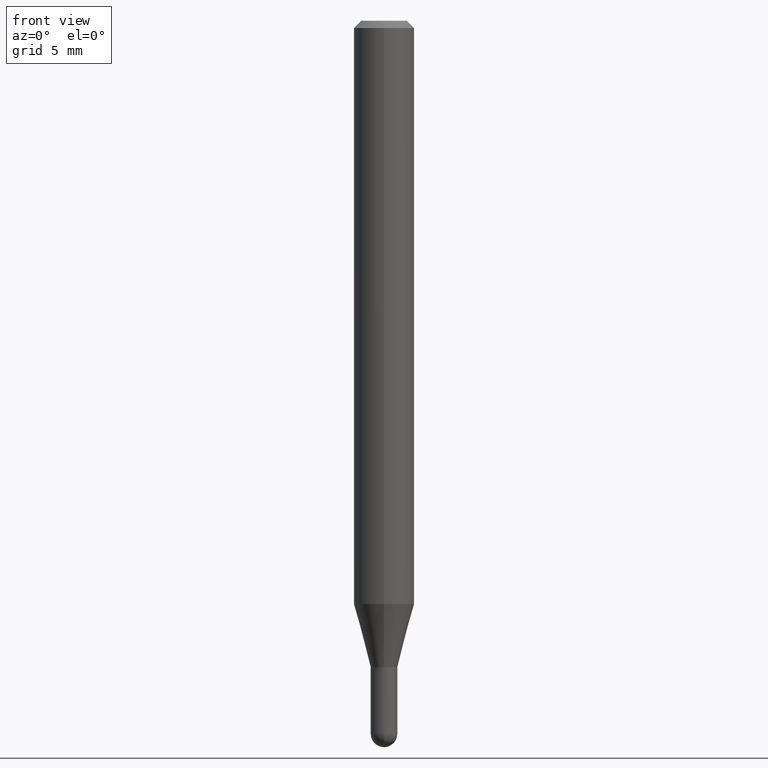
[diagram: clean part render]
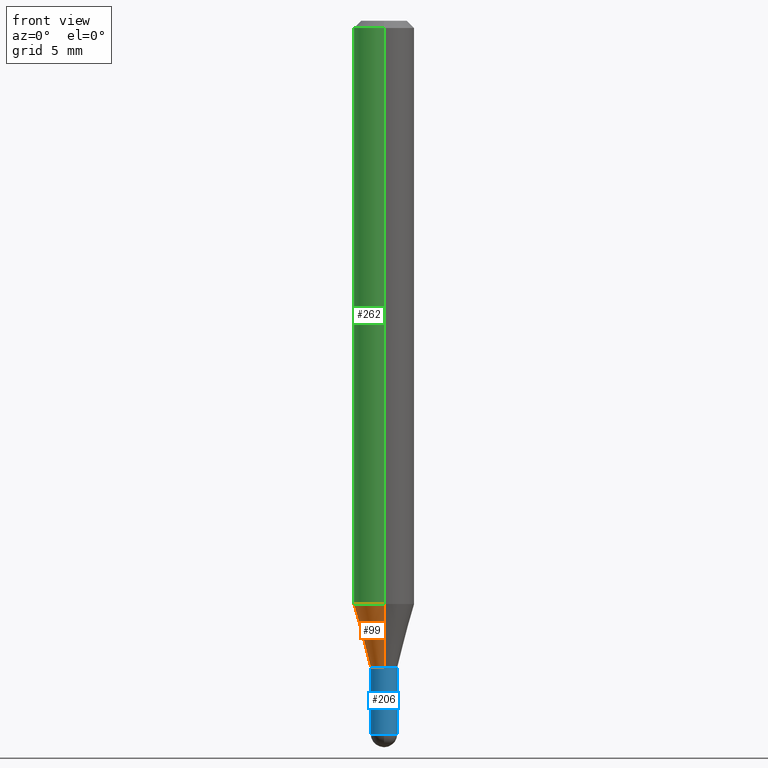
[diagram: same view with three faces highlighted in distinct colors, each labeled with its STEP entity id]
A machine part, front view with three faces highlighted in distinct colors.
Their STEP definitions:

[orange] entity #99 — the highlighted conical surface has half-angle 15 deg.
#7 = VERTEX_POINT ( 'NONE', #301 ) ;
#8 = EDGE_CURVE ( 'NONE', #7, #60, #381, .T. ) ;
#26 = FACE_OUTER_BOUND ( 'NONE', #479, .T. ) ;
#33 = CARTESIAN_POINT ( 'NONE',  ( 1.953992523340595996E-16, 0.02749999999999525740, -1.335000000000000409 ) ) ;
#60 = VERTEX_POINT ( 'NONE', #411 ) ;
#65 = ORIENTED_EDGE ( 'NONE', *, *, #414, .T. ) ;
#75 = VECTOR ( 'NONE', #102, 39.37007874015748854 ) ;
#99 = ADVANCED_FACE ( 'NONE', ( #26 ), #466, .T. ) ;
#102 = DIRECTION ( 'NONE',  ( 1.839019923739647647E-15, 0.2588190451025316197, 0.9659258262890653146 ) ) ;
#126 = DIRECTION ( 'NONE',  ( -1.807323732225377077E-15, -0.2588190451025249028, 0.9659258262890670910 ) ) ;
#151 = VERTEX_POINT ( 'NONE', #266 ) ;
#172 = CARTESIAN_POINT ( 'NONE',  ( 3.264717647589894801E-29, -4.661103541211418295E-15, -1.335000000000000409 ) ) ;
#189 = EDGE_CURVE ( 'NONE', #317, #7, #351, .T. ) ;
#203 = ORIENTED_EDGE ( 'NONE', *, *, #189, .F. ) ;
#266 = CARTESIAN_POINT ( 'NONE',  ( -1.920314736363391136E-16, -0.02750000000000457981, -1.335000000000000409 ) ) ;
#276 = CIRCLE ( 'NONE', #347, 0.02749999999999992034 ) ;
#283 = CARTESIAN_POINT ( 'NONE',  ( 3.197442310920758867E-16, 0.02749999999999525740, -1.335000000000000409 ) ) ;
#286 = AXIS2_PLACEMENT_3D ( 'NONE', #468, #423, #350 ) ;
#288 = VECTOR ( 'NONE', #126, 39.37007874015748143 ) ;
#301 = CARTESIAN_POINT ( 'NONE',  ( 4.440892098500917054E-16, 0.06249999999999575340, -1.204378221735093790 ) ) ;
#317 = VERTEX_POINT ( 'NONE', #283 ) ;
#327 = ORIENTED_EDGE ( 'NONE', *, *, #447, .T. ) ;
#331 = LINE ( 'NONE', #486, #288 ) ;
#337 = DIRECTION ( 'NONE',  ( -2.445481383962467149E-29, 3.491463326750125322E-15, 1.000000000000000000 ) ) ;
#346 = AXIS2_PLACEMENT_3D ( 'NONE', #371, #337, #454 ) ;
#347 = AXIS2_PLACEMENT_3D ( 'NONE', #172, #410, #451 ) ;
#350 = DIRECTION ( 'NONE',  ( -6.982962677686265922E-15, -1.000000000000000000, 0.000000000000000000 ) ) ;
#351 = LINE ( 'NONE', #33, #75 ) ;
#371 = CARTESIAN_POINT ( 'NONE',  ( 2.945284520502991775E-29, -4.205042392724609361E-15, -1.204378221735093346 ) ) ;
#381 = CIRCLE ( 'NONE', #346, 0.06250000000000000000 ) ;
#390 = ORIENTED_EDGE ( 'NONE', *, *, #8, .F. ) ;
#410 = DIRECTION ( 'NONE',  ( -2.445481383962467149E-29, 3.491463326750125322E-15, 1.000000000000000000 ) ) ;
#411 = CARTESIAN_POINT ( 'NONE',  ( -4.364351673553623336E-16, -0.06250000000000421885, -1.204378221735093124 ) ) ;
#414 = EDGE_CURVE ( 'NONE', #317, #151, #276, .T. ) ;
#423 = DIRECTION ( 'NONE',  ( -2.445481383962467149E-29, 3.491463326750125322E-15, 1.000000000000000000 ) ) ;
#447 = EDGE_CURVE ( 'NONE', #151, #60, #331, .T. ) ;
#451 = DIRECTION ( 'NONE',  ( -6.982962677686265922E-15, -1.000000000000000000, 0.000000000000000000 ) ) ;
#454 = DIRECTION ( 'NONE',  ( -6.982962677686265922E-15, -1.000000000000000000, 4.370956789862821150E-15 ) ) ;
#466 = CONICAL_SURFACE ( 'NONE', #286, 0.02749999999999992034, 0.2617993877991572349 ) ;
#468 = CARTESIAN_POINT ( 'NONE',  ( 3.264717647589894801E-29, -4.661103541211418295E-15, -1.335000000000000409 ) ) ;
#479 = EDGE_LOOP ( 'NONE', ( #203, #65, #327, #390 ) ) ;
#486 = CARTESIAN_POINT ( 'NONE',  ( -1.920314736363391136E-16, -0.02750000000000457981, -1.335000000000000409 ) ) ;

[blue] entity #206 — the highlighted cylindrical surface (edge-blend (fillet) strip) has radius 0.6985 mm, axis along (-0, 0, 1).
#24 = CARTESIAN_POINT ( 'NONE',  ( -0.02750000000000000708, 1.953992523340276014E-16, -1.352707149820099356E-30 ) ) ;
#37 = AXIS2_PLACEMENT_3D ( 'NONE', #294, #168, #249 ) ;
#42 = DIRECTION ( 'NONE',  ( 1.000000000000000000, -6.982962677686277755E-15, 0.000000000000000000 ) ) ;
#44 = VECTOR ( 'NONE', #287, 39.37007874015748143 ) ;
#52 = AXIS2_PLACEMENT_3D ( 'NONE', #57, #211, #370 ) ;
#57 = CARTESIAN_POINT ( 'NONE',  ( 3.600952817107613706E-29, -5.141206271446532325E-15, -1.472500000000000142 ) ) ;
#68 = CYLINDRICAL_SURFACE ( 'NONE', #498, 0.02750000000000000708 ) ;
#76 = ORIENTED_EDGE ( 'NONE', *, *, #407, .F. ) ;
#84 = VERTEX_POINT ( 'NONE', #229 ) ;
#110 = CARTESIAN_POINT ( 'NONE',  ( 0.02750000000000000708, -1.920314736363723691E-16, 1.340948613343882588E-30 ) ) ;
#111 = VERTEX_POINT ( 'NONE', #500 ) ;
#142 = VECTOR ( 'NONE', #232, 39.37007874015748143 ) ;
#150 = CARTESIAN_POINT ( 'NONE',  ( 0.000000000000000000, 0.000000000000000000, 0.000000000000000000 ) ) ;
#152 = EDGE_CURVE ( 'NONE', #84, #319, #497, .T. ) ;
#154 = DIRECTION ( 'NONE',  ( -2.445468806185136597E-29, 3.491481338843145583E-15, 1.000000000000000000 ) ) ;
#165 = VERTEX_POINT ( 'NONE', #343 ) ;
#168 = DIRECTION ( 'NONE',  ( -2.445468806185136597E-29, 3.491481338843145583E-15, 1.000000000000000000 ) ) ;
#170 = CIRCLE ( 'NONE', #457, 0.02750000000000000708 ) ;
#196 = CARTESIAN_POINT ( 'NONE',  ( 0.02750000000000000014, -4.853159060991972403E-15, -1.335000000000000187 ) ) ;
#206 = ADVANCED_FACE ( 'NONE', ( #268 ), #68, .T. ) ;
#211 = DIRECTION ( 'NONE',  ( -2.445468806185136597E-29, 3.491481338843145583E-15, 1.000000000000000000 ) ) ;
#229 = CARTESIAN_POINT ( 'NONE',  ( -0.02750000000000000708, -4.705767677067038393E-15, -1.472500000000000142 ) ) ;
#232 = DIRECTION ( 'NONE',  ( -2.445468806185136877E-29, 3.491481338843145188E-15, 1.000000000000000000 ) ) ;
#239 = LINE ( 'NONE', #110, #44 ) ;
#243 = DIRECTION ( 'NONE',  ( -2.445468806185136597E-29, 3.491481338843145583E-15, 1.000000000000000000 ) ) ;
#247 = VERTEX_POINT ( 'NONE', #196 ) ;
#249 = DIRECTION ( 'NONE',  ( 1.000000000000000000, -6.982962677686279332E-15, 0.000000000000000000 ) ) ;
#250 = ORIENTED_EDGE ( 'NONE', *, *, #424, .T. ) ;
#264 = CIRCLE ( 'NONE', #52, 0.02750000000000000708 ) ;
#268 = FACE_OUTER_BOUND ( 'NONE', #353, .T. ) ;
#273 = CARTESIAN_POINT ( 'NONE',  ( 3.600952817107613706E-29, -5.141206271446532325E-15, -1.472500000000000142 ) ) ;
#287 = DIRECTION ( 'NONE',  ( -2.445468806185136877E-29, 3.491481338843145188E-15, 1.000000000000000000 ) ) ;
#293 = EDGE_CURVE ( 'NONE', #111, #247, #239, .T. ) ;
#294 = CARTESIAN_POINT ( 'NONE',  ( 3.264700856257157760E-29, -4.661127587355599122E-15, -1.335000000000000187 ) ) ;
#314 = DIRECTION ( 'NONE',  ( 1.000000000000000000, -6.982962677686265922E-15, 4.876176775795935232E-29 ) ) ;
#319 = VERTEX_POINT ( 'NONE', #435 ) ;
#343 = CARTESIAN_POINT ( 'NONE',  ( -1.920314736363366977E-16, -0.02750000000000519737, -1.472500000000000142 ) ) ;
#349 = ORIENTED_EDGE ( 'NONE', *, *, #152, .F. ) ;
#353 = EDGE_LOOP ( 'NONE', ( #349, #471, #250, #364, #76 ) ) ;
#364 = ORIENTED_EDGE ( 'NONE', *, *, #293, .T. ) ;
#370 = DIRECTION ( 'NONE',  ( 1.000000000000000000, -6.982962677686277755E-15, 0.000000000000000000 ) ) ;
#386 = EDGE_CURVE ( 'NONE', #84, #165, #170, .T. ) ;
#407 = EDGE_CURVE ( 'NONE', #319, #247, #429, .T. ) ;
#424 = EDGE_CURVE ( 'NONE', #165, #111, #264, .T. ) ;
#429 = CIRCLE ( 'NONE', #37, 0.02750000000000000014 ) ;
#435 = CARTESIAN_POINT ( 'NONE',  ( -0.02750000000000000014, -4.705767677067038393E-15, -1.335000000000000187 ) ) ;
#457 = AXIS2_PLACEMENT_3D ( 'NONE', #273, #243, #42 ) ;
#471 = ORIENTED_EDGE ( 'NONE', *, *, #386, .T. ) ;
#497 = LINE ( 'NONE', #24, #142 ) ;
#498 = AXIS2_PLACEMENT_3D ( 'NONE', #150, #154, #314 ) ;
#500 = CARTESIAN_POINT ( 'NONE',  ( 0.02750000000000000708, -5.093198403037438216E-15, -1.472500000000000142 ) ) ;

[green] entity #262 — the highlighted cylindrical surface (edge-blend (fillet) strip) has radius 1.5875 mm, axis along (-0, 0, 1).
#3 = DIRECTION ( 'NONE',  ( -2.445481383962467429E-29, 3.491463326750125716E-15, 1.000000000000000000 ) ) ;
#7 = VERTEX_POINT ( 'NONE', #301 ) ;
#8 = EDGE_CURVE ( 'NONE', #7, #60, #381, .T. ) ;
#22 = CARTESIAN_POINT ( 'NONE',  ( 4.440892098500922971E-16, 0.06249999999999995143, -0.01500000000000022669 ) ) ;
#40 = DIRECTION ( 'NONE',  ( -2.445481383962467149E-29, 3.491463326750125322E-15, 1.000000000000000000 ) ) ;
#59 = VECTOR ( 'NONE', #3, 39.37007874015748143 ) ;
#60 = VERTEX_POINT ( 'NONE', #411 ) ;
#71 = LINE ( 'NONE', #358, #59 ) ;
#95 = DIRECTION ( 'NONE',  ( -6.982962677686265922E-15, -1.000000000000000000, 3.483106191921935554E-15 ) ) ;
#114 = CIRCLE ( 'NONE', #186, 0.06250000000000000000 ) ;
#155 = CYLINDRICAL_SURFACE ( 'NONE', #420, 0.06250000000000000000 ) ;
#175 = CARTESIAN_POINT ( 'NONE',  ( -4.364351673553912750E-16, -0.06250000000000005551, -0.01499999999999979128 ) ) ;
#186 = AXIS2_PLACEMENT_3D ( 'NONE', #291, #438, #95 ) ;
#205 = ORIENTED_EDGE ( 'NONE', *, *, #464, .F. ) ;
#213 = VECTOR ( 'NONE', #363, 39.37007874015748143 ) ;
#226 = ORIENTED_EDGE ( 'NONE', *, *, #360, .T. ) ;
#241 = FACE_OUTER_BOUND ( 'NONE', #392, .T. ) ;
#262 = ADVANCED_FACE ( 'NONE', ( #241 ), #155, .T. ) ;
#291 = CARTESIAN_POINT ( 'NONE',  ( 3.668222075943703298E-31, -5.237194990125190917E-17, -0.01500000000000000812 ) ) ;
#301 = CARTESIAN_POINT ( 'NONE',  ( 4.440892098500917054E-16, 0.06249999999999575340, -1.204378221735093790 ) ) ;
#315 = CARTESIAN_POINT ( 'NONE',  ( -4.364351673553916201E-16, -0.06250000000000000000, 2.182164579218828326E-16 ) ) ;
#328 = DIRECTION ( 'NONE',  ( -6.982962677686265922E-15, -1.000000000000000000, 3.491463326750125322E-15 ) ) ;
#333 = EDGE_CURVE ( 'NONE', #7, #417, #71, .T. ) ;
#337 = DIRECTION ( 'NONE',  ( -2.445481383962467149E-29, 3.491463326750125322E-15, 1.000000000000000000 ) ) ;
#346 = AXIS2_PLACEMENT_3D ( 'NONE', #371, #337, #454 ) ;
#358 = CARTESIAN_POINT ( 'NONE',  ( 4.440892098500625669E-16, 0.06250000000000000000, -2.182164579218828326E-16 ) ) ;
#360 = EDGE_CURVE ( 'NONE', #60, #422, #476, .T. ) ;
#363 = DIRECTION ( 'NONE',  ( -2.445481383962467429E-29, 3.491463326750125716E-15, 1.000000000000000000 ) ) ;
#371 = CARTESIAN_POINT ( 'NONE',  ( 2.945284520502991775E-29, -4.205042392724609361E-15, -1.204378221735093346 ) ) ;
#381 = CIRCLE ( 'NONE', #346, 0.06250000000000000000 ) ;
#391 = CARTESIAN_POINT ( 'NONE',  ( 0.000000000000000000, 0.000000000000000000, 0.000000000000000000 ) ) ;
#392 = EDGE_LOOP ( 'NONE', ( #511, #432, #226, #205 ) ) ;
#411 = CARTESIAN_POINT ( 'NONE',  ( -4.364351673553623336E-16, -0.06250000000000421885, -1.204378221735093124 ) ) ;
#417 = VERTEX_POINT ( 'NONE', #22 ) ;
#420 = AXIS2_PLACEMENT_3D ( 'NONE', #391, #40, #328 ) ;
#422 = VERTEX_POINT ( 'NONE', #175 ) ;
#432 = ORIENTED_EDGE ( 'NONE', *, *, #8, .T. ) ;
#438 = DIRECTION ( 'NONE',  ( -2.445481383962467149E-29, 3.491463326750125322E-15, 1.000000000000000000 ) ) ;
#454 = DIRECTION ( 'NONE',  ( -6.982962677686265922E-15, -1.000000000000000000, 4.370956789862821150E-15 ) ) ;
#464 = EDGE_CURVE ( 'NONE', #417, #422, #114, .T. ) ;
#476 = LINE ( 'NONE', #315, #213 ) ;
#511 = ORIENTED_EDGE ( 'NONE', *, *, #333, .F. ) ;